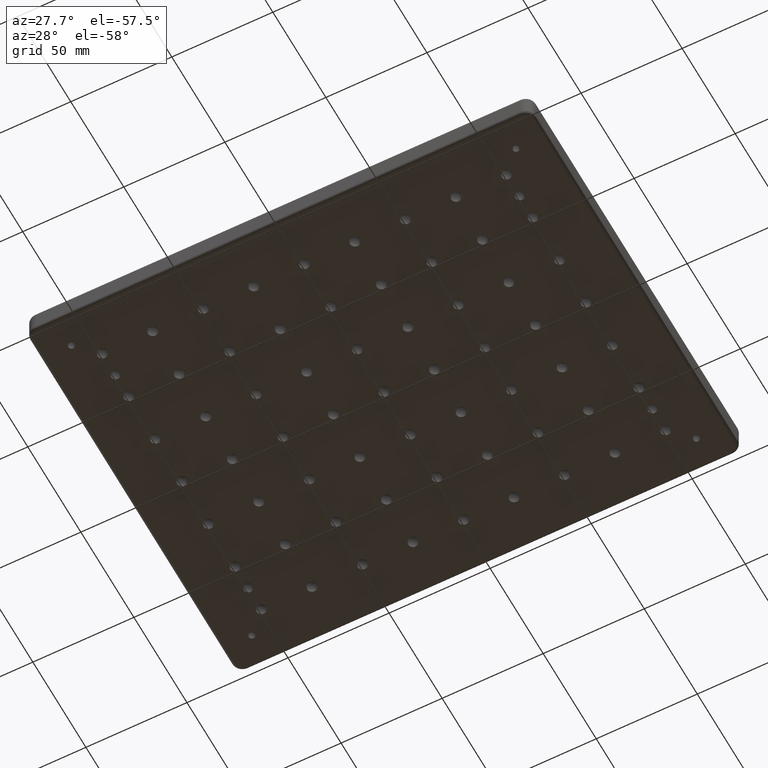
[diagram: clean part render]
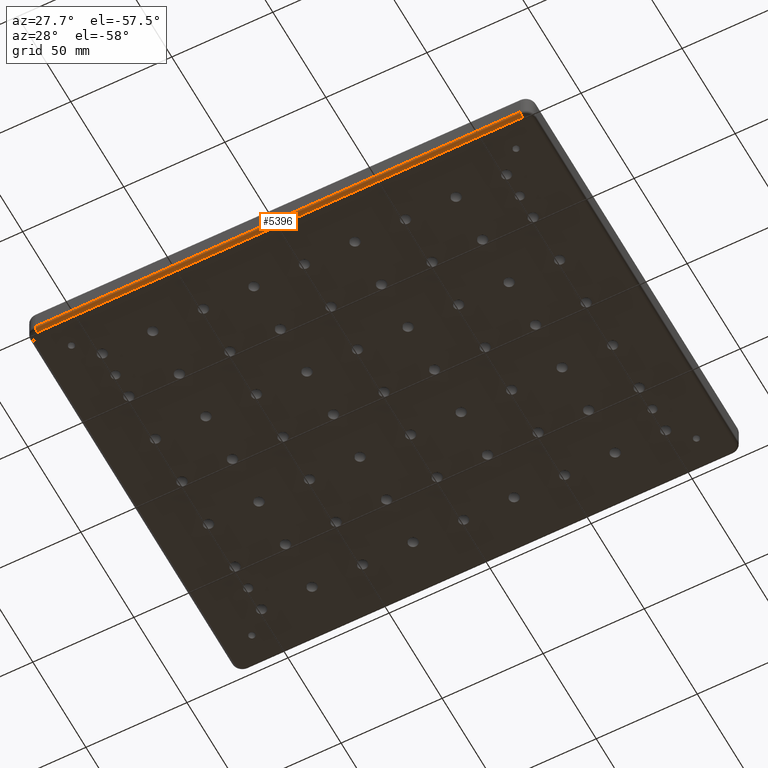
[diagram: same view with one face highlighted and labeled with its STEP entity id]
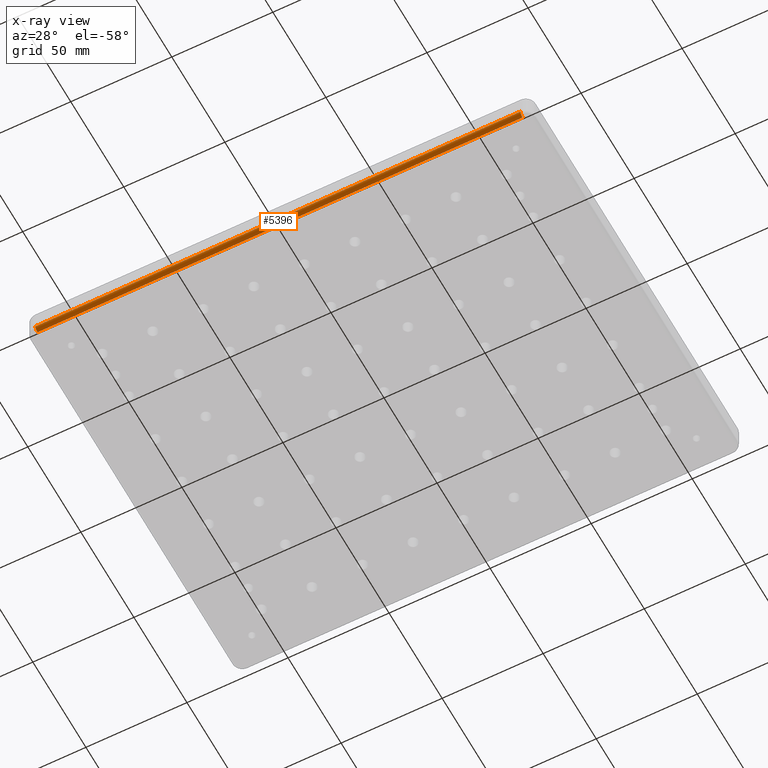
[diagram: x-ray of the same camera — body ghosted, the highlighted face saturated]
A machine part, auxiliary view. The second image highlights one B-rep face of the part: STEP entity #5396.
The next image is the same camera in x-ray: the body ghosted, the highlighted face saturated — about 0% of this face is hidden behind the body in this view.
In plain terms, the highlighted cylindrical surface (edge-blend (fillet) strip) has radius 2 mm, axis along (1, -0, 0).
Its self-contained STEP definition (entity closure, byte-faithful):
#129 = VERTEX_POINT ( 'NONE', #5763 ) ;
#149 = VERTEX_POINT ( 'NONE', #379 ) ;
#379 = CARTESIAN_POINT ( 'NONE',  ( 120.0000000000001279, -98.00000000000002842, -13.00000000000000000 ) ) ;
#683 = CYLINDRICAL_SURFACE ( 'NONE', #1923, 2.000000000000001776 ) ;
#765 = VERTEX_POINT ( 'NONE', #1489 ) ;
#976 = CARTESIAN_POINT ( 'NONE',  ( 120.0000000000001137, -98.00000000000002842, -11.00000000000000000 ) ) ;
#1076 = CARTESIAN_POINT ( 'NONE',  ( -120.0000000000001137, -98.00000000000000000, -11.00000000000000000 ) ) ;
#1351 = DIRECTION ( 'NONE',  ( -1.000000000000000000, 1.156482317317870492E-16, -0.000000000000000000 ) ) ;
#1353 = LINE ( 'NONE', #4721, #4674 ) ;
#1467 = EDGE_CURVE ( 'NONE', #149, #129, #3789, .T. ) ;
#1489 = CARTESIAN_POINT ( 'NONE',  ( 120.0000000000001137, -100.0000000000000284, -11.00000000000000000 ) ) ;
#1534 = DIRECTION ( 'NONE',  ( 1.000000000000000000, -1.156482317317870492E-16, 0.000000000000000000 ) ) ;
#1682 = ORIENTED_EDGE ( 'NONE', *, *, #4015, .T. ) ;
#1761 = ORIENTED_EDGE ( 'NONE', *, *, #1467, .F. ) ;
#1923 = AXIS2_PLACEMENT_3D ( 'NONE', #3037, #1534, #4510 ) ;
#2139 = FACE_OUTER_BOUND ( 'NONE', #2899, .T. ) ;
#2194 = ORIENTED_EDGE ( 'NONE', *, *, #3934, .F. ) ;
#2855 = EDGE_CURVE ( 'NONE', #5713, #765, #1353, .T. ) ;
#2899 = EDGE_LOOP ( 'NONE', ( #1682, #1761, #2194, #5112 ) ) ;
#3037 = CARTESIAN_POINT ( 'NONE',  ( -120.0000000000001137, -98.00000000000000000, -11.00000000000000000 ) ) ;
#3250 = CIRCLE ( 'NONE', #6018, 2.000000000000000000 ) ;
#3789 = LINE ( 'NONE', #6185, #4657 ) ;
#3934 = EDGE_CURVE ( 'NONE', #765, #149, #3250, .T. ) ;
#4015 = EDGE_CURVE ( 'NONE', #5713, #129, #5207, .T. ) ;
#4142 = DIRECTION ( 'NONE',  ( 1.000000000000000000, 0.000000000000000000, 0.000000000000000000 ) ) ;
#4177 = DIRECTION ( 'NONE',  ( 1.000000000000000000, -1.156482317317870492E-16, 0.000000000000000000 ) ) ;
#4510 = DIRECTION ( 'NONE',  ( 0.000000000000000000, 1.000000000000000000, 0.000000000000000000 ) ) ;
#4657 = VECTOR ( 'NONE', #1351, 1000.000000000000000 ) ;
#4674 = VECTOR ( 'NONE', #4177, 1000.000000000000000 ) ;
#4721 = CARTESIAN_POINT ( 'NONE',  ( -120.0000000000001137, -100.0000000000000000, -11.00000000000000000 ) ) ;
#5112 = ORIENTED_EDGE ( 'NONE', *, *, #2855, .F. ) ;
#5207 = CIRCLE ( 'NONE', #6229, 2.000000000000000000 ) ;
#5396 = ADVANCED_FACE ( 'NONE', ( #2139 ), #683, .T. ) ;
#5713 = VERTEX_POINT ( 'NONE', #5808 ) ;
#5752 = DIRECTION ( 'NONE',  ( 1.000000000000000000, 0.000000000000000000, 1.387778780781445518E-14 ) ) ;
#5763 = CARTESIAN_POINT ( 'NONE',  ( -120.0000000000001137, -98.00000000000000000, -13.00000000000000000 ) ) ;
#5808 = CARTESIAN_POINT ( 'NONE',  ( -120.0000000000001137, -100.0000000000000000, -11.00000000000000000 ) ) ;
#5972 = DIRECTION ( 'NONE',  ( 0.000000000000000000, 0.000000000000000000, -1.000000000000000000 ) ) ;
#6018 = AXIS2_PLACEMENT_3D ( 'NONE', #976, #5752, #6339 ) ;
#6185 = CARTESIAN_POINT ( 'NONE',  ( -120.0000000000001279, -98.00000000000000000, -13.00000000000000000 ) ) ;
#6229 = AXIS2_PLACEMENT_3D ( 'NONE', #1076, #4142, #5972 ) ;
#6339 = DIRECTION ( 'NONE',  ( 1.387778780781445676E-14, 0.000000000000000000, -1.000000000000000000 ) ) ;